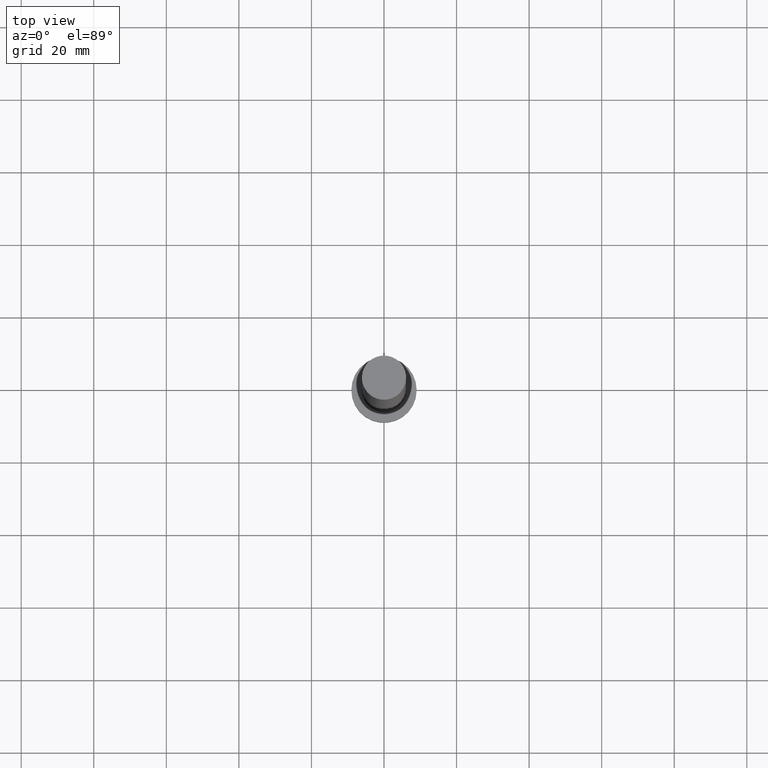
[diagram: clean part render]
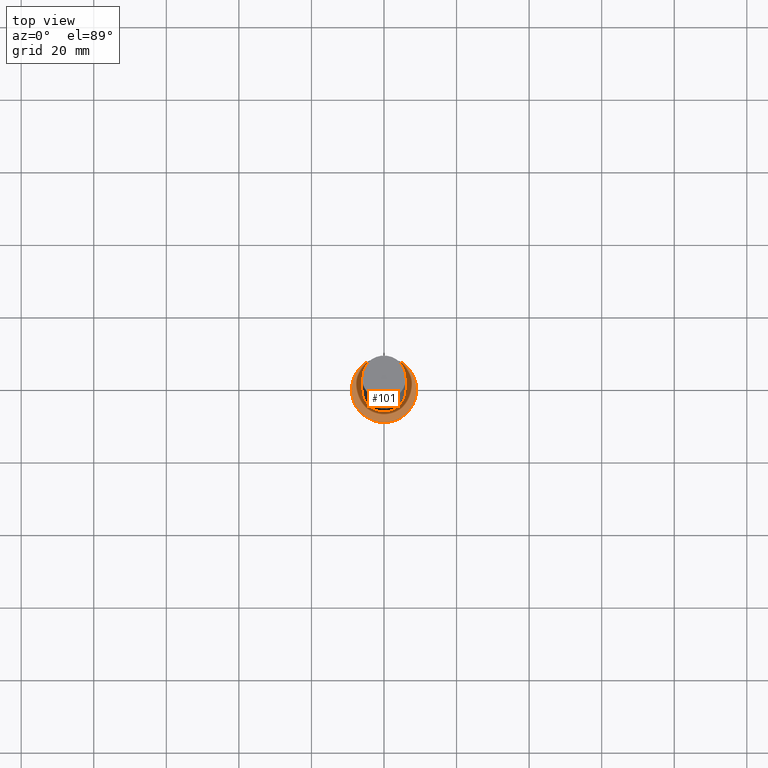
[diagram: same view with one face highlighted and labeled with its STEP entity id]
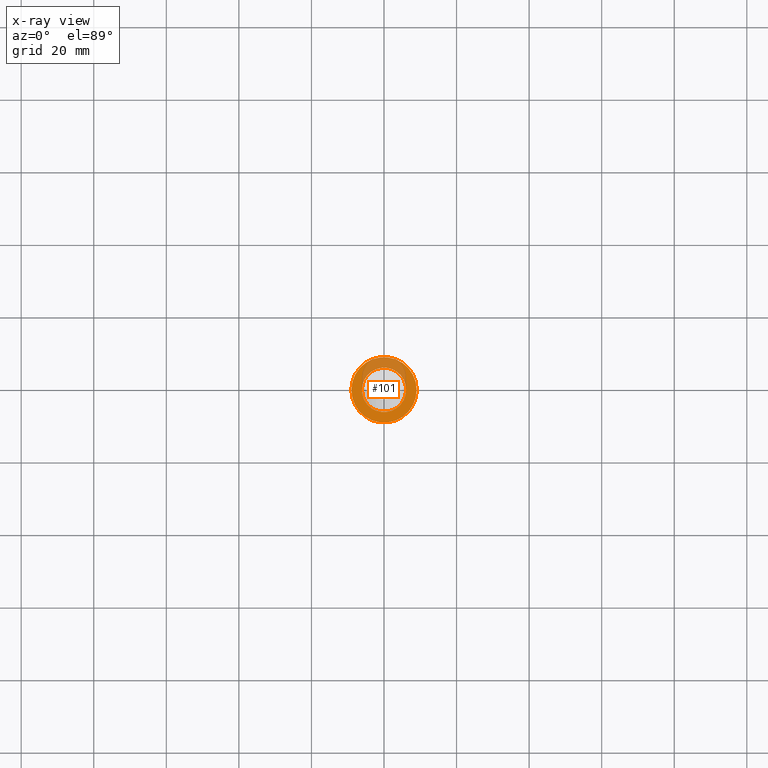
[diagram: x-ray of the same camera — body ghosted, the highlighted face saturated]
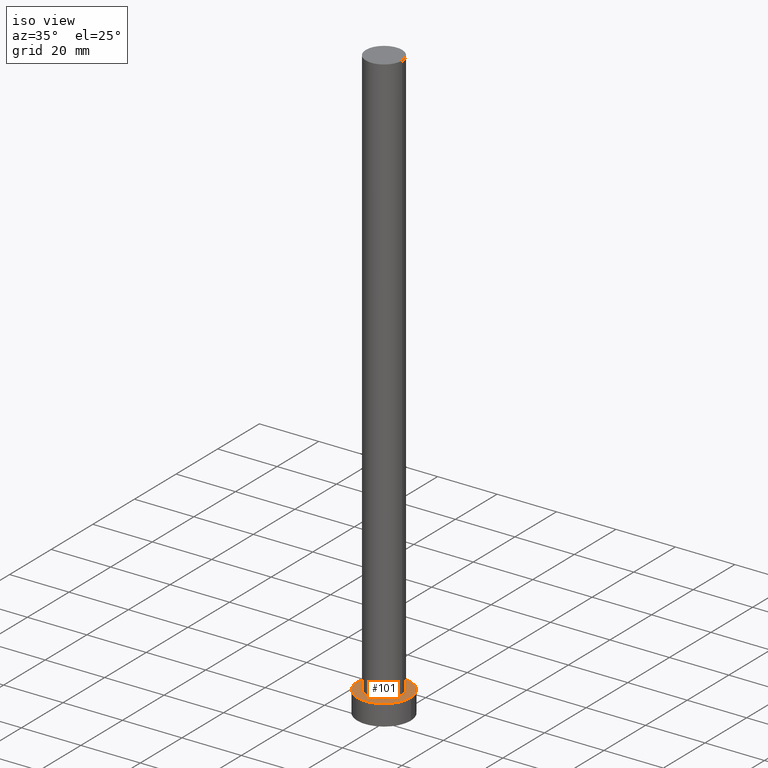
[diagram: same view with one face highlighted and labeled with its STEP entity id]
A machine part, top view. The second image highlights one B-rep face of the part: STEP entity #101.
The next image is the same camera in x-ray: the body ghosted, the highlighted face saturated — about 28% of this face is hidden behind the body in this view.
A second angle (iso view) of the same face is appended — the face is thin or edge-on in the first view.
In plain terms, the highlighted planar face has unit normal (0, 0, 1).
Its self-contained STEP definition (entity closure, byte-faithful):
#2 = CIRCLE ( 'NONE', #216, 9.000000000000000000 ) ;
#10 = EDGE_CURVE ( 'NONE', #226, #17, #2, .T. ) ;
#11 = DIRECTION ( 'NONE',  ( 1.000000000000000000, 0.000000000000000000, 0.000000000000000000 ) ) ;
#12 = VERTEX_POINT ( 'NONE', #194 ) ;
#14 = FACE_OUTER_BOUND ( 'NONE', #154, .T. ) ;
#17 = VERTEX_POINT ( 'NONE', #148 ) ;
#19 = DIRECTION ( 'NONE',  ( 0.000000000000000000, 0.000000000000000000, 1.000000000000000000 ) ) ;
#20 = CIRCLE ( 'NONE', #161, 9.000000000000000000 ) ;
#29 = EDGE_CURVE ( 'NONE', #17, #226, #20, .T. ) ;
#32 = ORIENTED_EDGE ( 'NONE', *, *, #10, .T. ) ;
#52 = ORIENTED_EDGE ( 'NONE', *, *, #123, .F. ) ;
#54 = EDGE_LOOP ( 'NONE', ( #55, #52 ) ) ;
#55 = ORIENTED_EDGE ( 'NONE', *, *, #141, .F. ) ;
#61 = DIRECTION ( 'NONE',  ( 1.000000000000000000, 0.000000000000000000, 0.000000000000000000 ) ) ;
#68 = CARTESIAN_POINT ( 'NONE',  ( 0.000000000000000000, 0.000000000000000000, 7.000000000000000000 ) ) ;
#71 = DIRECTION ( 'NONE',  ( 0.000000000000000000, 0.000000000000000000, 1.000000000000000000 ) ) ;
#72 = AXIS2_PLACEMENT_3D ( 'NONE', #68, #71, #97 ) ;
#75 = DIRECTION ( 'NONE',  ( 0.000000000000000000, 0.000000000000000000, 1.000000000000000000 ) ) ;
#82 = CIRCLE ( 'NONE', #172, 6.099999999999999645 ) ;
#97 = DIRECTION ( 'NONE',  ( 1.000000000000000000, 0.000000000000000000, -0.000000000000000000 ) ) ;
#98 = CIRCLE ( 'NONE', #146, 6.099999999999999645 ) ;
#101 = ADVANCED_FACE ( 'NONE', ( #166, #14 ), #245, .T. ) ;
#121 = CARTESIAN_POINT ( 'NONE',  ( 0.000000000000000000, 0.000000000000000000, 7.000000000000000000 ) ) ;
#123 = EDGE_CURVE ( 'NONE', #220, #12, #82, .T. ) ;
#132 = DIRECTION ( 'NONE',  ( 1.000000000000000000, 0.000000000000000000, 0.000000000000000000 ) ) ;
#134 = DIRECTION ( 'NONE',  ( 0.000000000000000000, 0.000000000000000000, 1.000000000000000000 ) ) ;
#141 = EDGE_CURVE ( 'NONE', #12, #220, #98, .T. ) ;
#146 = AXIS2_PLACEMENT_3D ( 'NONE', #121, #19, #61 ) ;
#148 = CARTESIAN_POINT ( 'NONE',  ( 9.000000000000000000, 1.102182119232617714E-15, 7.000000000000000000 ) ) ;
#154 = EDGE_LOOP ( 'NONE', ( #32, #175 ) ) ;
#158 = DIRECTION ( 'NONE',  ( 0.000000000000000000, 0.000000000000000000, 1.000000000000000000 ) ) ;
#161 = AXIS2_PLACEMENT_3D ( 'NONE', #228, #75, #11 ) ;
#166 = FACE_BOUND ( 'NONE', #54, .T. ) ;
#172 = AXIS2_PLACEMENT_3D ( 'NONE', #176, #158, #180 ) ;
#175 = ORIENTED_EDGE ( 'NONE', *, *, #29, .T. ) ;
#176 = CARTESIAN_POINT ( 'NONE',  ( 0.000000000000000000, 0.000000000000000000, 7.000000000000000000 ) ) ;
#180 = DIRECTION ( 'NONE',  ( 1.000000000000000000, 0.000000000000000000, 0.000000000000000000 ) ) ;
#189 = CARTESIAN_POINT ( 'NONE',  ( 0.000000000000000000, 0.000000000000000000, 7.000000000000000000 ) ) ;
#194 = CARTESIAN_POINT ( 'NONE',  ( -6.099999999999999645, 0.000000000000000000, 7.000000000000000000 ) ) ;
#201 = CARTESIAN_POINT ( 'NONE',  ( 6.099999999999999645, 7.470345474798854293E-16, 7.000000000000000000 ) ) ;
#216 = AXIS2_PLACEMENT_3D ( 'NONE', #189, #134, #132 ) ;
#220 = VERTEX_POINT ( 'NONE', #201 ) ;
#226 = VERTEX_POINT ( 'NONE', #230 ) ;
#228 = CARTESIAN_POINT ( 'NONE',  ( 0.000000000000000000, 0.000000000000000000, 7.000000000000000000 ) ) ;
#230 = CARTESIAN_POINT ( 'NONE',  ( -9.000000000000000000, 0.000000000000000000, 7.000000000000000000 ) ) ;
#245 = PLANE ( 'NONE',  #72 ) ;